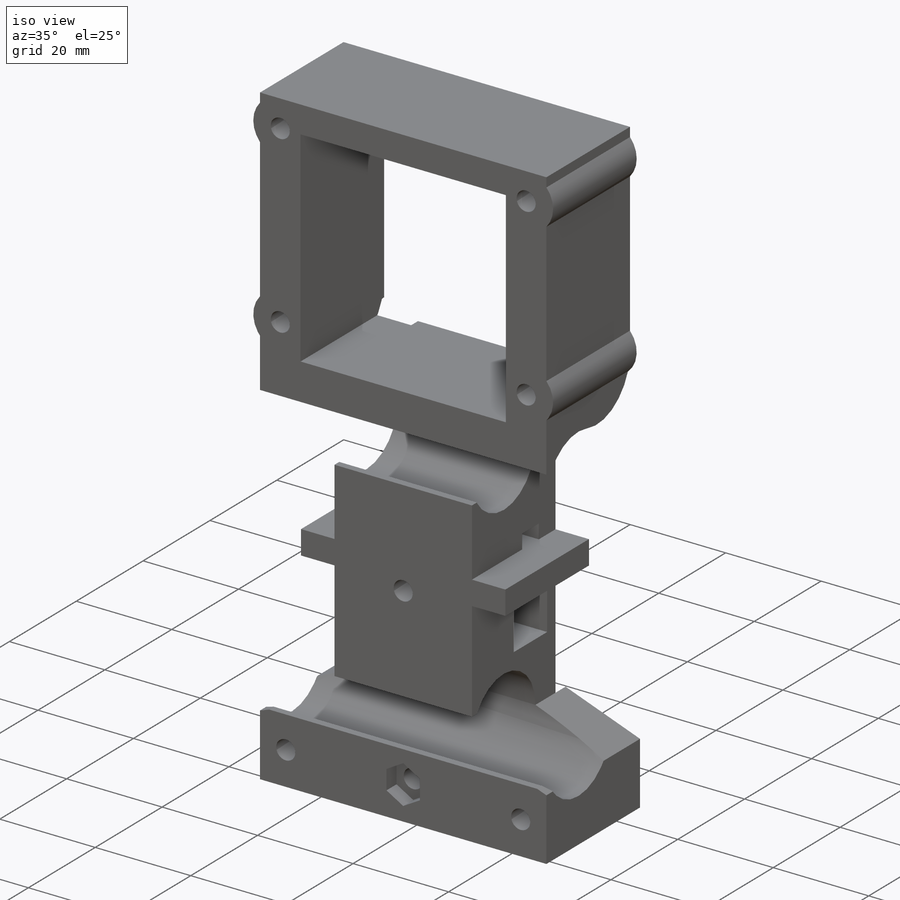
[diagram: iso view]
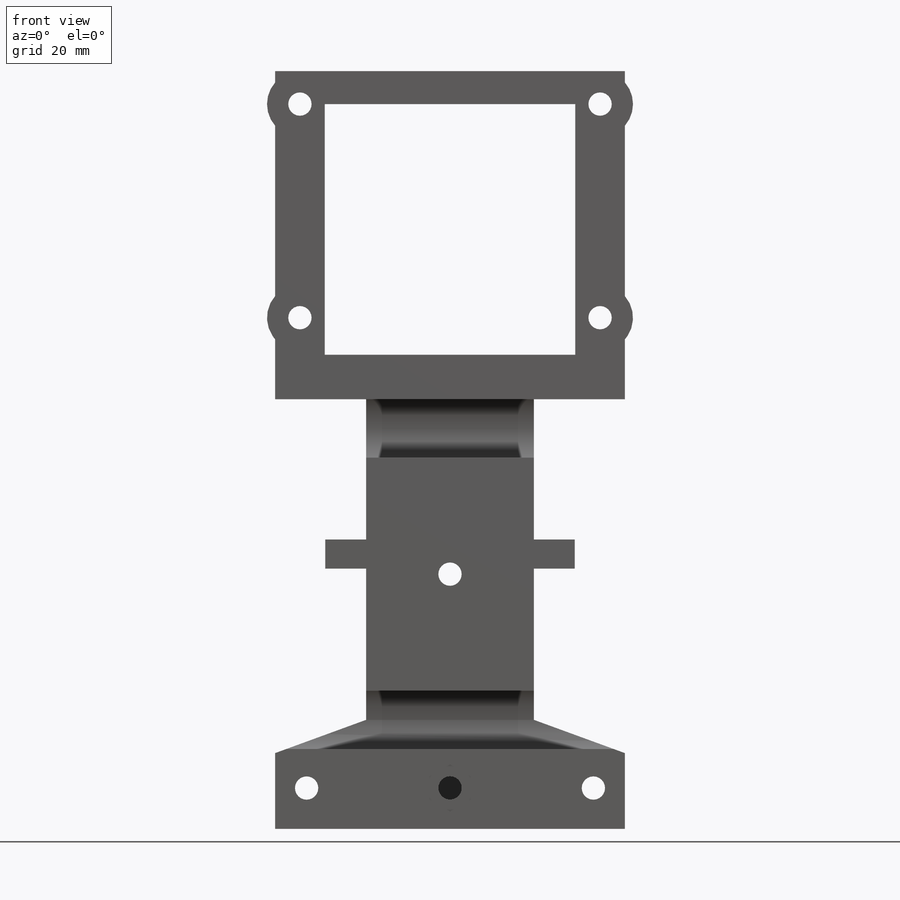
[diagram: front view]
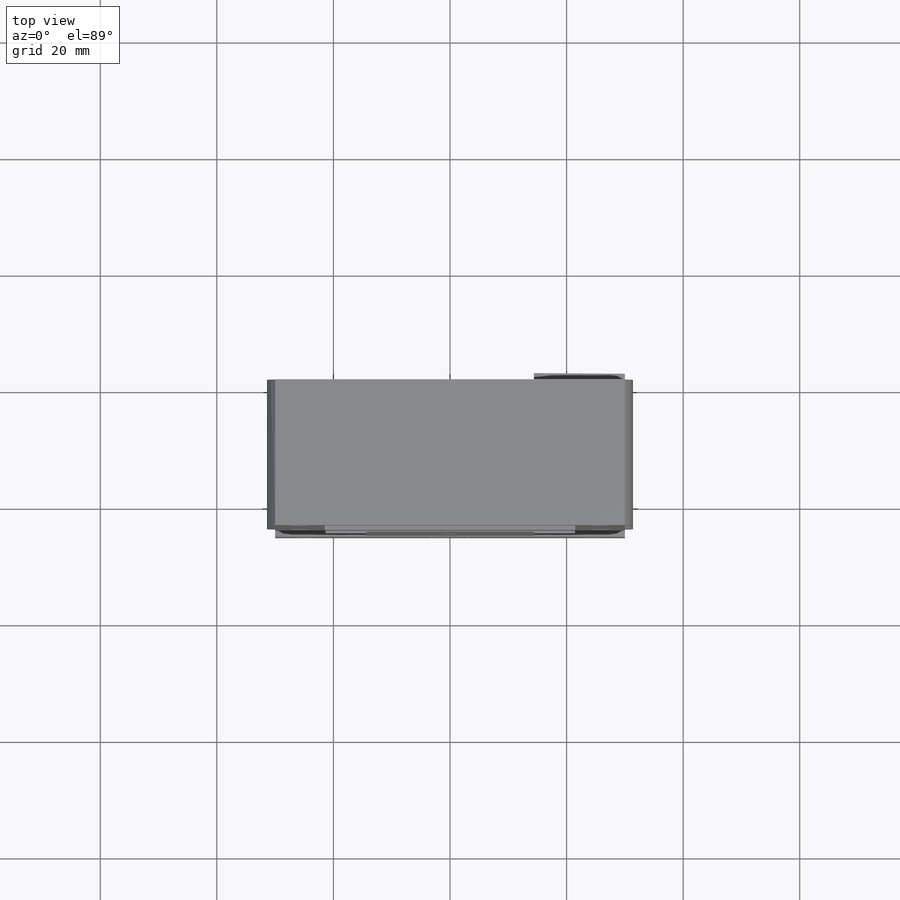
[diagram: top view]
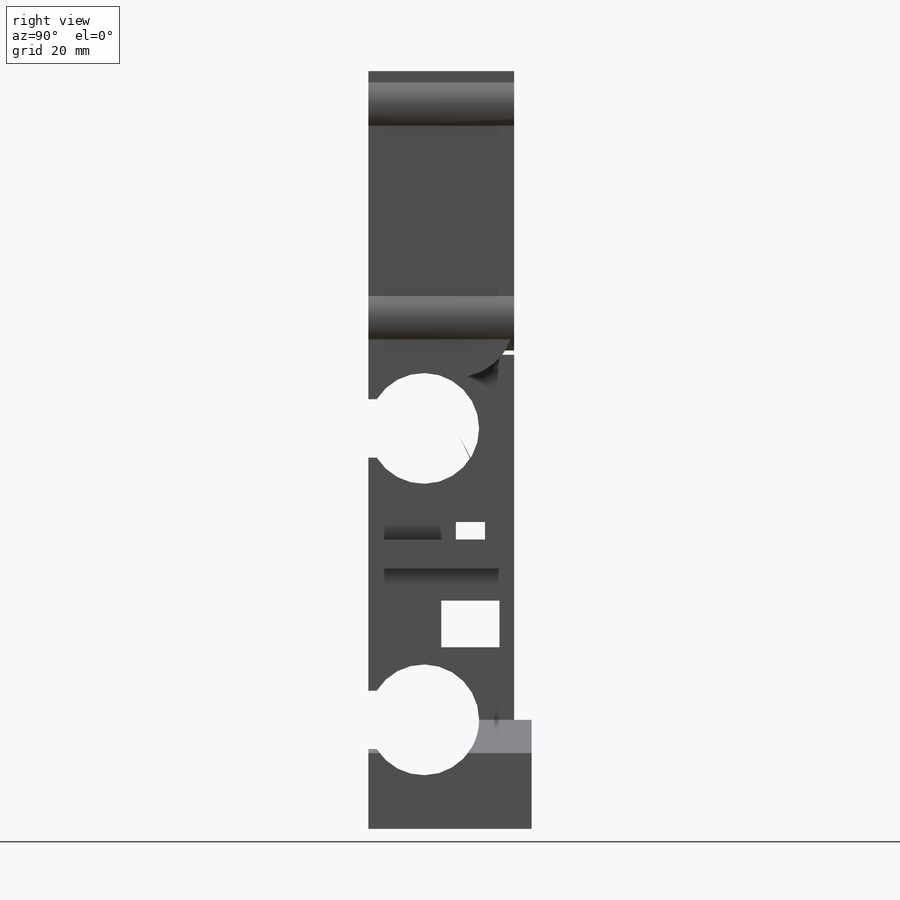
[diagram: right view]
SOLIDWORKS PART (.sldprt)
format: sldprt  version: not decoded by parser v0  size: 628,736 bytes
history: native  units: mm
features: sketch x16, extrude x8, cut_extrude x8, plane x3, fillet x2, material x1 (+10 scaffold rows collapsed)
feature tree (48):
  scaffold x10  (default folders/planes/origin — collapsed)
  material  "ABS"
  plane  "Спереди"
  plane  "Сверху"
  plane  "Справа"
  sketch  "Эскиз1"  dims[D1=60.0mm D2=130.0mm]
  extrude  "Бобышка-Вытянуть1"  Depth=25mm
  sketch  "Эскиз2"  dims[D1=43.0mm D2=52.0mm D3=13.0mm]
  cut_extrude  "Вырез-Вытянуть1"  [1 undecoded]
  sketch  "Эскиз3"  dims[c1.D1=19.0mm c1.D2=17.0mm c1.D3=10.0mm c1.D4=8.0mm c1.D5=5.0mm c1.D6=7.5mm c1.D7=~17.28563mm c2.D6=17.5mm]
  cut_extrude  "Вырез-Вытянуть2"  [1 undecoded]
  fillet  "Скругление1"  Radius=20mm
  fillet  "Скругление2"  Radius=10mm
  sketch  "Эскиз4"  dims[D1=14.0mm D2=4.25mm]
  cut_extrude  "Вырез-Вытянуть3"  [1 undecoded]
  sketch  "Эскиз5"  dims[D1=8.5mm]
  extrude  "Бобышка-Вытянуть2"  [1 undecoded]
  sketch  "Эскиз6"
  extrude  "Бобышка-Вытянуть3"  [1 undecoded]
  sketch  "Эскиз7"  dims[D1=7.0mm]
  cut_extrude  "Вырез-Вытянуть4"  Depth=5mm
  sketch  "Эскиз8"
  cut_extrude  "Вырез-Вытянуть5"  Depth=20mm
  sketch  "Эскиз9"  dims[D1=7.0mm]
  cut_extrude  "Вырез-Вытянуть6"  Depth=3mm
  sketch  "Эскиз11"  dims[c1.D1=2.5mm c1.D2=5.0mm c1.D3=17.0mm c1.D4=7.0mm c1.D5=5.0mm c2.D3=17.0mm c2.D6=7.0mm]
  extrude  "Бобышка-Вытянуть5"  Depth=7mm
  sketch  "Эскиз12"
  extrude  "Бобышка-Вытянуть6"  Depth=7mm
  sketch  "Эскиз13"
  extrude  "Бобышка-Вытянуть7"  [1 undecoded]
  sketch  "Эскиз17"
  extrude  "Бобышка-Вытянуть8"  [1 undecoded]
  sketch  "Эскиз18"
  extrude  "Бобышка-Вытянуть9"  Depth=3mm
  sketch  "Эскиз19"  dims[D1=3.0mm D2=5.0mm]
  cut_extrude  "Вырез-Вытянуть7"  [1 undecoded]
  sketch  "Эскиз20"  dims[D1=10.0mm D2=15.0mm]
  cut_extrude  "Вырез-Вытянуть8"  Depth=13mm
decode coverage: 20 of 34 modeling features carry decoded parameters
note: ~ marks probable driven/reference dimensions
note: 8 parameter values undecoded
summary: no parameter record found for 8 features
note: suppression state not decoded; provenance and decode notes live in map.json
